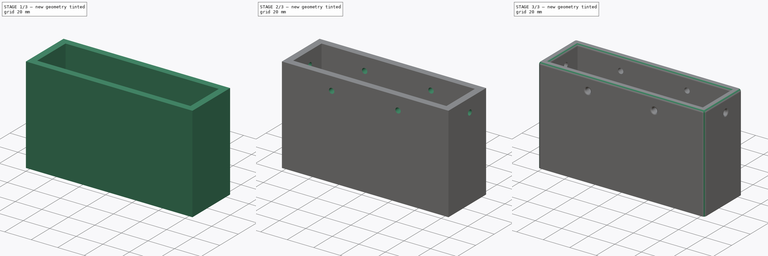
[diagram: build sequence overview — one tinted view per stage of 3, left to right]
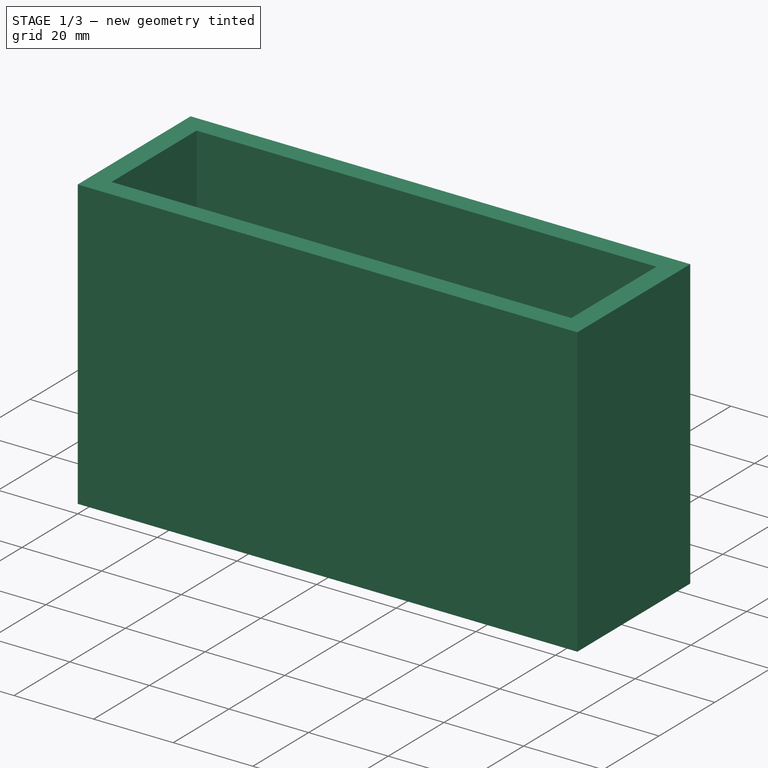
[diagram: stage 1 of 3 — iso view after this stage's code; geometry added in this stage tinted green]
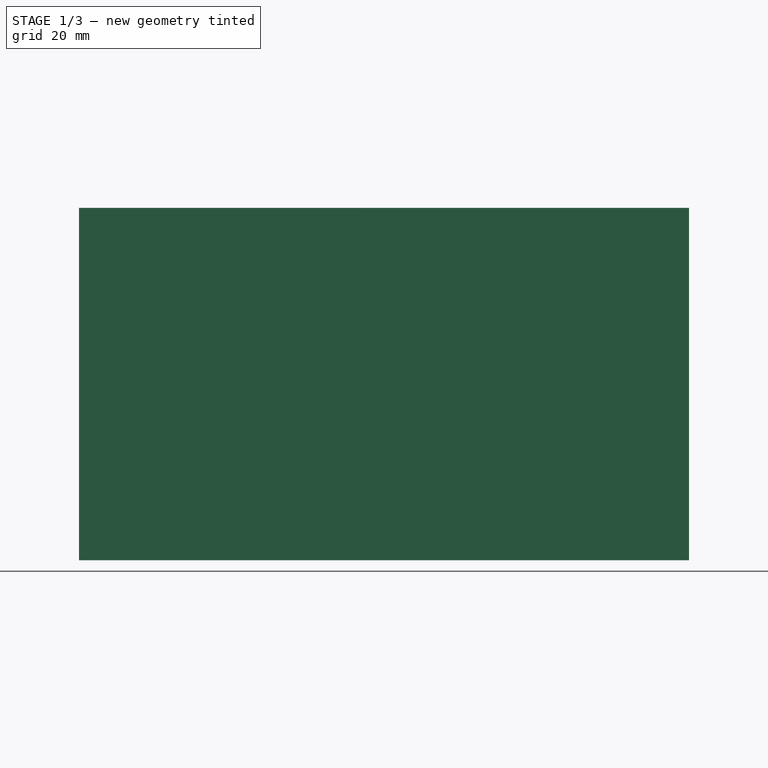
[diagram: stage 1 of 3 — front view after this stage's code; geometry added in this stage tinted green]
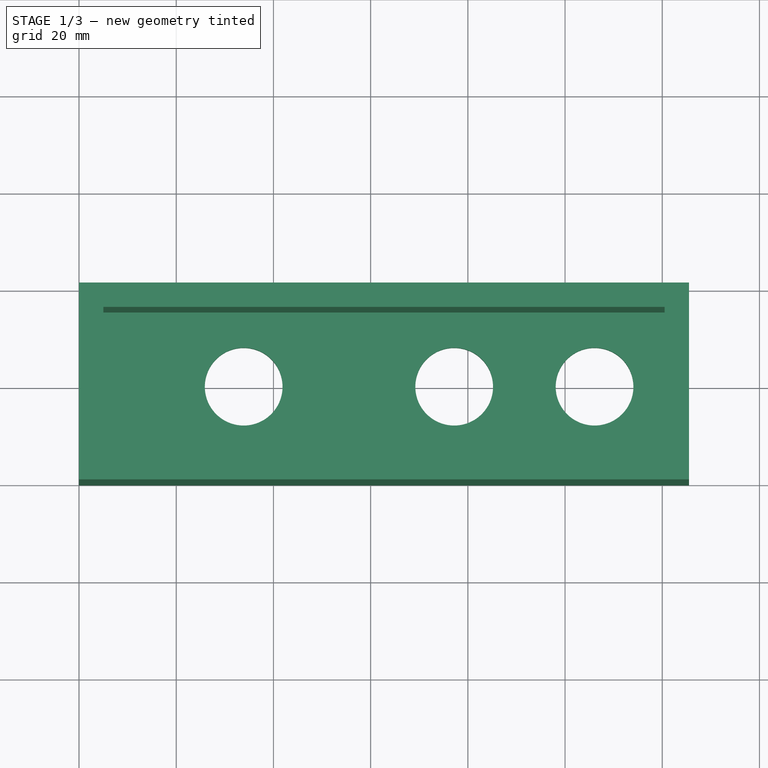
[diagram: stage 1 of 3 — top view after this stage's code; geometry added in this stage tinted green]
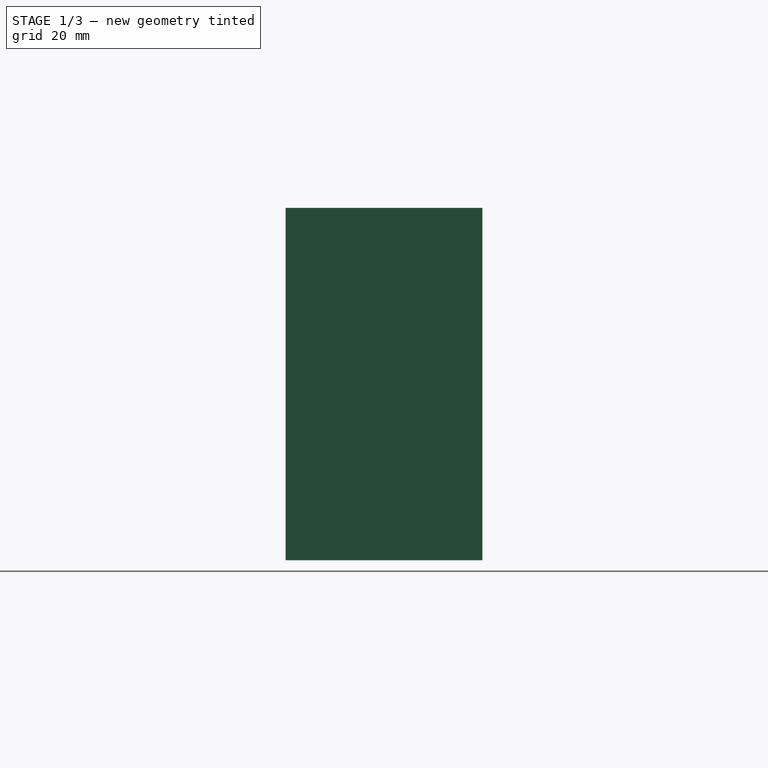
[diagram: stage 1 of 3 — right view after this stage's code; geometry added in this stage tinted green]
FCSTD DOCUMENT  (FreeCAD 0.20R)
Label: psu_endcap
License: All rights reserved
LicenseURL: http://en.wikipedia.org/wiki/All_rights_reserved
objects: Sketcher::SketchObject×5, PartDesign::Pocket×4, PartDesign::ShapeBinder×3, PartDesign::Plane×3, PartDesign::Fillet×3, Spreadsheet::Sheet×1, PartDesign::Pad×1, PartDesign::Body×1
note: 28 computed .brp shape members not serialized (recipe doc carries the construction recipe); baked Part::Feature solids carry a one-line shape summary decoded from their .brp

FEATURE [Sketcher::SketchObject] Sketch
  FullyConstrained = false
  MapMode = 5
  Support = -> [XY_Plane]
  expr: Constraints[19] = Spreadsheet.wall_thickness
  expr: Constraints[20] = Spreadsheet.wall_thickness
  expr: Constraints[24] = 30mm + Spreadsheet.tolerance
  expr: Constraints[25] = 115mm + Spreadsheet.tolerance
  sketch-geometry (16):
    g0: LineSegment StartX=0 StartY=0 StartZ=0 EndX=125.5 EndY=0 EndZ=0
    g1: LineSegment StartX=125.5 StartY=0 StartZ=0 EndX=125.5 EndY=40.5 EndZ=0
    g2: LineSegment StartX=125.5 StartY=40.5 StartZ=0 EndX=0 EndY=40.5 EndZ=0
    g3: LineSegment StartX=0 StartY=40.5 StartZ=0 EndX=0 EndY=0 EndZ=0
    g4: LineSegment StartX=5 StartY=5 StartZ=0 EndX=5 EndY=35.5 EndZ=0
    g5: LineSegment StartX=5 StartY=35.5 StartZ=0 EndX=120.5 EndY=35.5 EndZ=0
    g6: LineSegment StartX=120.5 StartY=35.5 StartZ=0 EndX=120.5 EndY=5 EndZ=0
    g7: LineSegment StartX=120.5 StartY=5 StartZ=0 EndX=5 EndY=5 EndZ=0
    g8: GeomPoint X=62.75 Y=20.25 Z=0
    g9: Circle CenterX=33.88 CenterY=20.25 CenterZ=0 NormalX=0 NormalY=0 NormalZ=1 AngleXU=0 Radius=8
    g10: LineSegment StartX=-1.74839 StartY=20.25 StartZ=0 EndX=125.735 EndY=20.25 EndZ=0
    g11: LineSegment StartX=62.75 StartY=38.1674 StartZ=0 EndX=62.75 EndY=-2.43925 EndZ=0
    g12: Circle CenterX=77.19 CenterY=20.25 CenterZ=0 NormalX=0 NormalY=0 NormalZ=1 AngleXU=0 Radius=8
    g13: Circle CenterX=106.07 CenterY=20.25 CenterZ=0 NormalX=0 NormalY=0 NormalZ=1 AngleXU=0 Radius=8
    g14: Circle CenterX=77.19 CenterY=20.25 CenterZ=0 NormalX=0 NormalY=0 NormalZ=1 AngleXU=0 Radius=11
    g15: Circle CenterX=106.07 CenterY=20.25 CenterZ=0 NormalX=0 NormalY=0 NormalZ=1 AngleXU=0 Radius=11
  constraints (38):
    c: Coincident(g0,g1)
    c: Coincident(g1,g2)
    c: Coincident(g2,g3)
    c: Coincident(g3,g0)
    c: Horizontal(g2)
    c: Vertical(g1)
    c: Coincident(g0,g-1)
    c: Coincident(g4,g5)
    c: Coincident(g5,g6)
    c: Coincident(g6,g7)
    c: Coincident(g7,g4)
    c: Horizontal(g5)
    c: Horizontal(g7)
    c: Vertical(g6)
    c: Symmetric(g5,g4,g8)
    c: Diameter(g9) = 16
    c: Horizontal(g10)
    c: Symmetric(g2,g0,g10)
    c: Symmetric(g4,g4,g10)
    c: DistanceY(g0,g4) = 5
    c: DistanceX(g0,g4) = 5
    c: Vertical(g11)
    c: PointOnObject(g8,g11)
    c: Symmetric(g0,g0,g11)
    c: DistanceY(g4,g4) = 30.5
    c: DistanceX(g7,g7) = 115.5
    c: PointOnObject(g9,g10)
    c: PointOnObject(g12,g10)
    c: PointOnObject(g13,g10)
    c: Equal(g12,g9)
    c: Equal(g9,g13)
    c: DistanceX(g8,g12) = 14.44
    c: Coincident(g14,g12)
    c: Coincident(g15,g13)
    c: Equal(g14,g15)
    c: Diameter(g14) = 22
    c: DistanceX(g8,g13) = 43.32
    c: DistanceX(g4,g9) = 28.88
FEATURE [Spreadsheet::Sheet] Spreadsheet
  cells = A1=Wall thickness; B1(wall_thickness)==5mm; A2=Tolerance; B2(tolerance)==0.5mm; A3=Backoff; B3(wall_backoff)==0.5mm; A5=Hole Depth; B5(hole_depth)==32.5mm; A6=Additional Depth; B6(add_depth)==35mm; A7=Total Depth; B7(total_depth)==hole_depth + add_depth + wall_thickness
FEATURE [PartDesign::Pad] Pad
  Direction = (0,0,1)
  Length = 72.5
  Length2 = 10
  Profile = -> Sketch
  ReferenceAxis = -> Sketch [N_Axis]
  Type = 0
  expr: Length = Spreadsheet.total_depth
FEATURE [PartDesign::ShapeBinder] ShapeBinder
  Placement = pos=(0,0,72.5) rot=(0,0,1;0rad)
  Support = -> [Pad]
  TraceSupport = false
FEATURE [PartDesign::Plane] DatumPlane
  Length = 170.357
  MapMode = 5
  Placement = pos=(0,0,72.5) rot=(0,0,1;0rad)
  ResizeMode = 0
  Support = -> [ShapeBinder]
  Width = 85.3572
FEATURE [Sketcher::SketchObject] Sketch001
  FullyConstrained = false
  MapMode = 5
  Placement = pos=(0,0,72.5) rot=(0,0,1;0rad)
  Support = -> [DatumPlane]
  expr: Constraints[19] = Spreadsheet.wall_thickness
  expr: Constraints[20] = Spreadsheet.wall_thickness
  expr: Constraints[24] = 30mm + Spreadsheet.tolerance
  expr: Constraints[25] = 115mm + Spreadsheet.tolerance
  sketch-geometry (16):
    g0: LineSegment StartX=0 StartY=0 StartZ=0 EndX=125.5 EndY=0 EndZ=0
    g1: LineSegment StartX=125.5 StartY=0 StartZ=0 EndX=125.5 EndY=40.5 EndZ=0
    g2: LineSegment StartX=125.5 StartY=40.5 StartZ=0 EndX=0 EndY=40.5 EndZ=0
    g3: LineSegment StartX=0 StartY=40.5 StartZ=0 EndX=0 EndY=0 EndZ=0
    g4: LineSegment StartX=5 StartY=5 StartZ=0 EndX=5 EndY=35.5 EndZ=0
    g5: LineSegment StartX=5 StartY=35.5 StartZ=0 EndX=120.5 EndY=35.5 EndZ=0
    g6: LineSegment StartX=120.5 StartY=35.5 StartZ=0 EndX=120.5 EndY=5 EndZ=0
    g7: LineSegment StartX=120.5 StartY=5 StartZ=0 EndX=5 EndY=5 EndZ=0
    g8: GeomPoint X=62.75 Y=20.25 Z=0
    g9: Circle CenterX=33.88 CenterY=20.25 CenterZ=0 NormalX=0 NormalY=0 NormalZ=1 AngleXU=0 Radius=8
    g10: LineSegment StartX=-1.74839 StartY=20.25 StartZ=0 EndX=125.735 EndY=20.25 EndZ=0
    g11: LineSegment StartX=62.75 StartY=38.1674 StartZ=0 EndX=62.75 EndY=-2.43925 EndZ=0
    g12: Circle CenterX=77.19 CenterY=20.25 CenterZ=0 NormalX=0 NormalY=0 NormalZ=1 AngleXU=0 Radius=8
    g13: Circle CenterX=106.07 CenterY=20.25 CenterZ=0 NormalX=0 NormalY=0 NormalZ=1 AngleXU=0 Radius=8
    g14: Circle CenterX=77.19 CenterY=20.25 CenterZ=0 NormalX=0 NormalY=0 NormalZ=1 AngleXU=0 Radius=11
    g15: Circle CenterX=106.07 CenterY=20.25 CenterZ=0 NormalX=0 NormalY=0 NormalZ=1 AngleXU=0 Radius=11
  constraints (38):
    c: Coincident(g0,g1)
    c: Coincident(g1,g2)
    c: Coincident(g2,g3)
    c: Coincident(g3,g0)
    c: Horizontal(g2)
    c: Vertical(g1)
    c: Coincident(g0,g-1)
    c: Coincident(g4,g5)
    c: Coincident(g5,g6)
    c: Coincident(g6,g7)
    c: Coincident(g7,g4)
    c: Horizontal(g5)
    c: Horizontal(g7)
    c: Vertical(g6)
    c: Symmetric(g5,g4,g8)
    c: Diameter(g9) = 16
    c: Horizontal(g10)
    c: Symmetric(g2,g0,g10)
    c: Symmetric(g4,g4,g10)
    c: DistanceY(g0,g4) = 5
    c: DistanceX(g0,g4) = 5
    c: Vertical(g11)
    c: PointOnObject(g8,g11)
    c: Symmetric(g0,g0,g11)
    c: DistanceY(g4,g4) = 30.5
    c: DistanceX(g7,g7) = 115.5
    c: PointOnObject(g9,g10)
    c: PointOnObject(g12,g10)
    c: PointOnObject(g13,g10)
    c: Equal(g12,g9)
    c: Equal(g9,g13)
    c: DistanceX(g8,g12) = 14.44
    c: Coincident(g14,g12)
    c: Coincident(g15,g13)
    c: Equal(g14,g15)
    c: Diameter(g14) = 22
    c: DistanceX(g8,g13) = 43.32
    c: DistanceX(g4,g9) = 28.88
FEATURE [PartDesign::Pocket] Pocket
  BaseFeature = -> Pad
  Direction = (0,0,-1)
  Length = 67.5
  Length2 = 5
  Profile = -> Sketch001
  ReferenceAxis = -> Sketch001 [N_Axis]
  Type = 0
  expr: Length = Spreadsheet.total_depth - Spreadsheet.wall_thickness
FEATURE [Sketcher::SketchObject] Sketch002
  FullyConstrained = false
  MapMode = 5
  Placement = pos=(0,0,72.5) rot=(0,0,1;0rad)
  Support = -> [DatumPlane]
  expr: Constraints[19] = Spreadsheet.wall_thickness
  expr: Constraints[20] = Spreadsheet.wall_thickness
  expr: Constraints[24] = 30mm + Spreadsheet.tolerance
  expr: Constraints[25] = 115mm + Spreadsheet.tolerance
  sketch-geometry (16):
    g0: LineSegment StartX=0 StartY=0 StartZ=0 EndX=125.5 EndY=0 EndZ=0
    g1: LineSegment StartX=125.5 StartY=0 StartZ=0 EndX=125.5 EndY=40.5 EndZ=0
    g2: LineSegment StartX=125.5 StartY=40.5 StartZ=0 EndX=0 EndY=40.5 EndZ=0
    g3: LineSegment StartX=0 StartY=40.5 StartZ=0 EndX=0 EndY=0 EndZ=0
    g4: LineSegment StartX=5 StartY=5 StartZ=0 EndX=5 EndY=35.5 EndZ=0
    g5: LineSegment StartX=5 StartY=35.5 StartZ=0 EndX=120.5 EndY=35.5 EndZ=0
    g6: LineSegment StartX=120.5 StartY=35.5 StartZ=0 EndX=120.5 EndY=5 EndZ=0
    g7: LineSegment StartX=120.5 StartY=5 StartZ=0 EndX=5 EndY=5 EndZ=0
    g8: GeomPoint X=62.75 Y=20.25 Z=0
    g9: Circle CenterX=33.88 CenterY=20.25 CenterZ=0 NormalX=0 NormalY=0 NormalZ=1 AngleXU=0 Radius=8
    g10: LineSegment StartX=-1.74839 StartY=20.25 StartZ=0 EndX=125.735 EndY=20.25 EndZ=0
    g11: LineSegment StartX=62.75 StartY=38.1674 StartZ=0 EndX=62.75 EndY=-2.43925 EndZ=0
    g12: Circle CenterX=77.19 CenterY=20.25 CenterZ=0 NormalX=0 NormalY=0 NormalZ=1 AngleXU=0 Radius=8
    g13: Circle CenterX=106.07 CenterY=20.25 CenterZ=0 NormalX=0 NormalY=0 NormalZ=1 AngleXU=0 Radius=8
    g14: Circle CenterX=77.19 CenterY=20.25 CenterZ=0 NormalX=0 NormalY=0 NormalZ=1 AngleXU=0 Radius=11
    g15: Circle CenterX=106.07 CenterY=20.25 CenterZ=0 NormalX=0 NormalY=0 NormalZ=1 AngleXU=0 Radius=11
  constraints (38):
    c: Coincident(g0,g1)
    c: Coincident(g1,g2)
    c: Coincident(g2,g3)
    c: Coincident(g3,g0)
    c: Horizontal(g2)
    c: Vertical(g1)
    c: Coincident(g0,g-1)
    c: Coincident(g4,g5)
    c: Coincident(g5,g6)
    c: Coincident(g6,g7)
    c: Coincident(g7,g4)
    c: Horizontal(g5)
    c: Horizontal(g7)
    c: Vertical(g6)
    c: Symmetric(g5,g4,g8)
    c: Diameter(g9) = 16
    c: Horizontal(g10)
    c: Symmetric(g2,g0,g10)
    c: Symmetric(g4,g4,g10)
    c: DistanceY(g0,g4) = 5
    c: DistanceX(g0,g4) = 5
    c: Vertical(g11)
    c: PointOnObject(g8,g11)
    c: Symmetric(g0,g0,g11)
    c: DistanceY(g4,g4) = 30.5
    c: DistanceX(g7,g7) = 115.5
    c: PointOnObject(g9,g10)
    c: PointOnObject(g12,g10)
    c: PointOnObject(g13,g10)
    c: Equal(g12,g9)
    c: Equal(g9,g13)
    c: DistanceX(g8,g12) = 14.44
    c: Coincident(g14,g12)
    c: Coincident(g15,g13)
    c: Equal(g14,g15)
    c: Diameter(g14) = 22
    c: DistanceX(g8,g13) = 43.32
    c: DistanceX(g4,g9) = 28.88
FEATURE [PartDesign::Pocket] Pocket001
  BaseFeature = -> Pocket
  Direction = (0,0,-1)
  Length = 72.5
  Length2 = 5
  Profile = -> Sketch002
  ReferenceAxis = -> Sketch002 [N_Axis]
  Type = 0
  expr: Length = Spreadsheet.total_depth
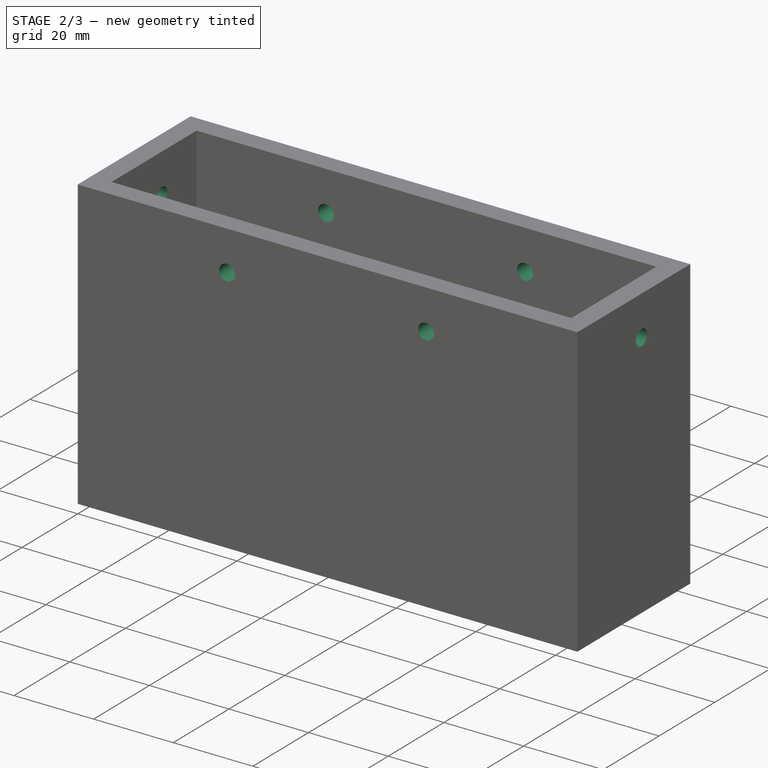
[diagram: stage 2 of 3 — iso view after this stage's code; geometry added in this stage tinted green]
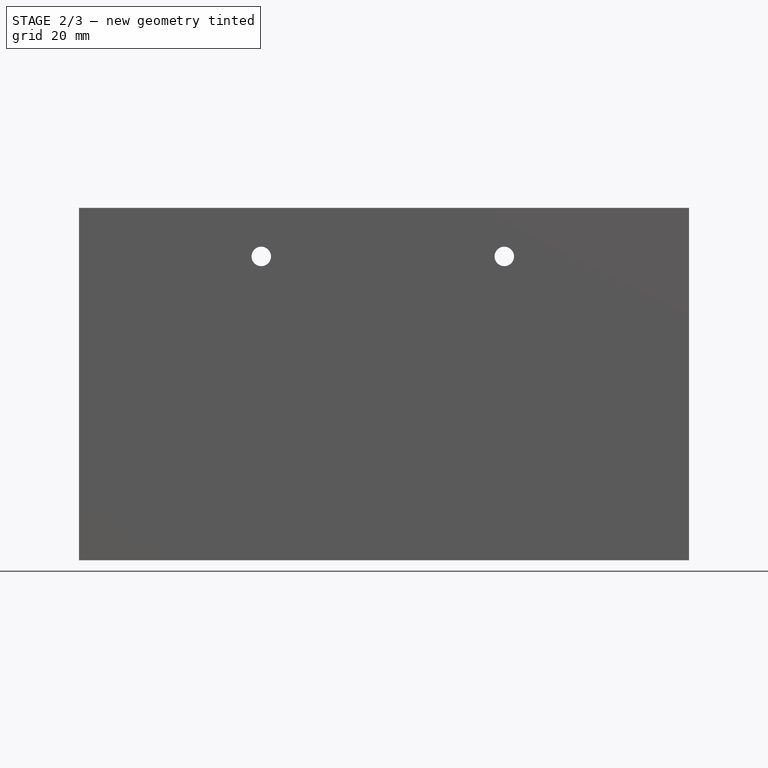
[diagram: stage 2 of 3 — front view after this stage's code; geometry added in this stage tinted green]
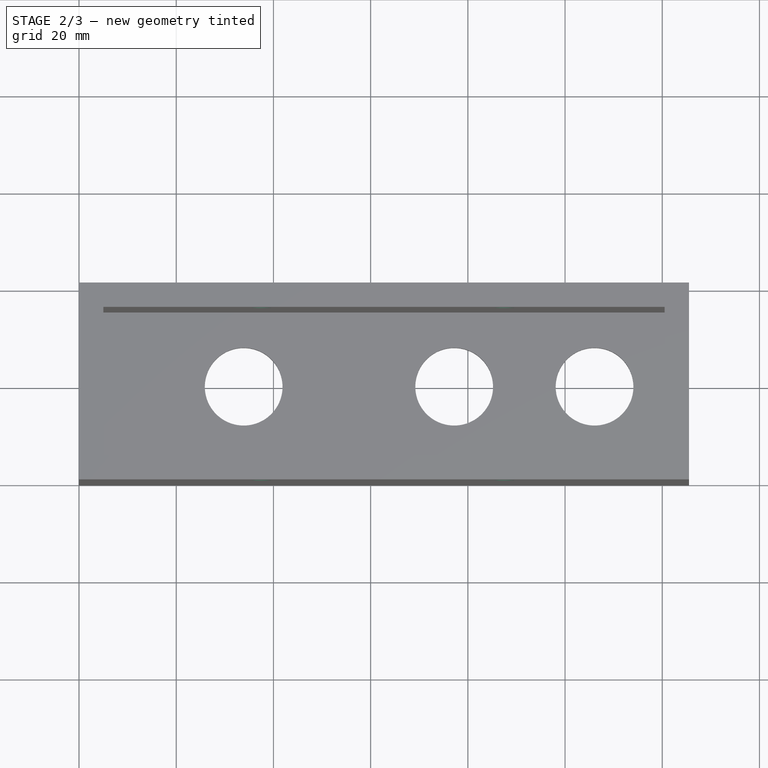
[diagram: stage 2 of 3 — top view after this stage's code; geometry added in this stage tinted green]
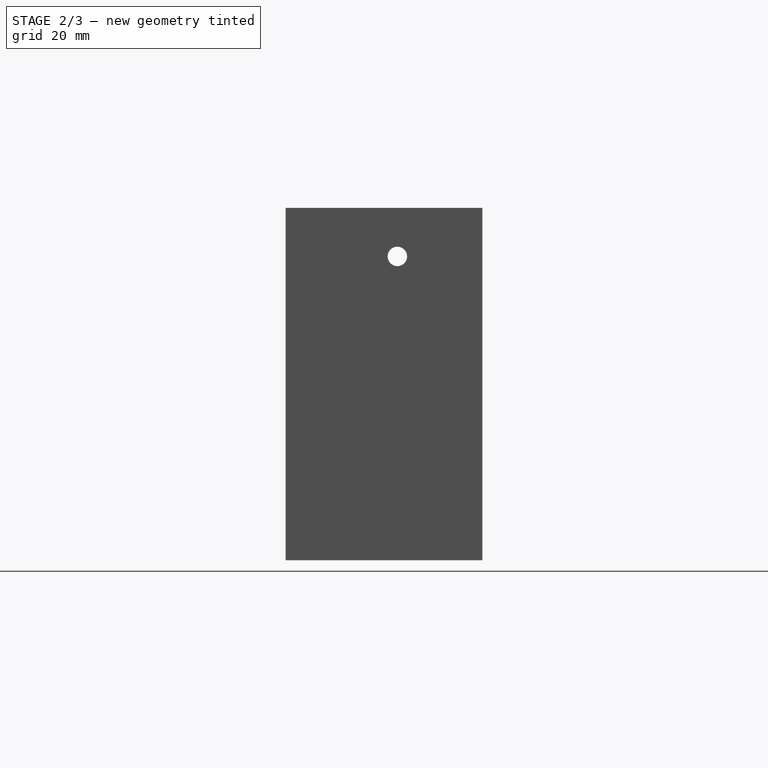
[diagram: stage 2 of 3 — right view after this stage's code; geometry added in this stage tinted green]
FEATURE [PartDesign::ShapeBinder] ShapeBinder001
  Support = -> [Pocket001]
  TraceSupport = false
FEATURE [PartDesign::Plane] DatumPlane001
  Length = 174.727
  MapMode = 5
  Placement = pos=(0,0,0) rot=(1,0,0;1.5708rad)
  ResizeMode = 0
  Support = -> [ShapeBinder001]
  Width = 121.727
FEATURE [Sketcher::SketchObject] Sketch003
  FullyConstrained = false
  MapMode = 5
  Placement = pos=(0,0,0) rot=(1,0,0;1.5708rad)
  Support = -> [DatumPlane001]
  expr: Constraints[1] = Spreadsheet.total_depth - 10mm
  expr: Constraints[5] = Spreadsheet.wall_thickness + 32.5mm
  sketch-geometry (3):
    g0: LineSegment StartX=-17.8182 StartY=62.5 StartZ=0 EndX=146.376 EndY=62.5 EndZ=0
    g1: Circle CenterX=37.5 CenterY=62.5 CenterZ=0 NormalX=0 NormalY=0 NormalZ=1 AngleXU=0 Radius=2
    g2: Circle CenterX=87.5 CenterY=62.5 CenterZ=0 NormalX=0 NormalY=0 NormalZ=1 AngleXU=0 Radius=2
  constraints (8):
    c: Horizontal(g0)
    c: DistanceY(g-1,g0) = 62.5
    c: PointOnObject(g1,g0)
    c: PointOnObject(g2,g0)
    c: Equal(g1,g2)
    c: DistanceX(g-1,g1) = 37.5
    c: DistanceX(g1,g2) = 50
    c: Diameter(g1) = 4
FEATURE [PartDesign::Pocket] Pocket002
  BaseFeature = -> Pocket001
  Direction = (0,1,-2e-16)
  Length = 5
  Length2 = 5
  Profile = -> Sketch003
  ReferenceAxis = -> Sketch003 [N_Axis]
  Type = 1
FEATURE [PartDesign::ShapeBinder] ShapeBinder002
  Support = -> [Pocket002]
  TraceSupport = false
FEATURE [PartDesign::Plane] DatumPlane002
  Length = 81.4828
  MapMode = 5
  Placement = pos=(0,0,0) rot=(0.57735,-0.57735,-0.57735;2.0944rad)
  ResizeMode = 0
  Support = -> [ShapeBinder002]
  Width = 113.483
FEATURE [Sketcher::SketchObject] Sketch004
  ExternalGeometry = -> [Pocket002]
  FullyConstrained = false
  MapMode = 5
  Placement = pos=(0,0,0) rot=(0.57735,-0.57735,-0.57735;2.0944rad)
  Support = -> [DatumPlane002]
  expr: Constraints[1] = Spreadsheet.total_depth - 10mm
  expr: Constraints[3] = Spreadsheet.wall_thickness + 12.5mm
  sketch-geometry (2):
    g0: LineSegment StartX=-48.2991 StartY=62.5 StartZ=0 EndX=26.8978 EndY=62.5 EndZ=0
    g1: Circle CenterX=-23 CenterY=62.5 CenterZ=0 NormalX=0 NormalY=0 NormalZ=1 AngleXU=0 Radius=2
  constraints (5):
    c: Horizontal(g0)
    c: DistanceY(g-1,g0) = 62.5
    c: PointOnObject(g1,g0)
    c: DistanceX(g-3,g1) = 17.5
    c: Diameter(g1) = 4
FEATURE [PartDesign::Pocket] Pocket003
  BaseFeature = -> Pocket002
  Direction = (1,0,0)
  Length = 5
  Length2 = 5
  Profile = -> Sketch004
  ReferenceAxis = -> Sketch004 [N_Axis]
  Type = 1
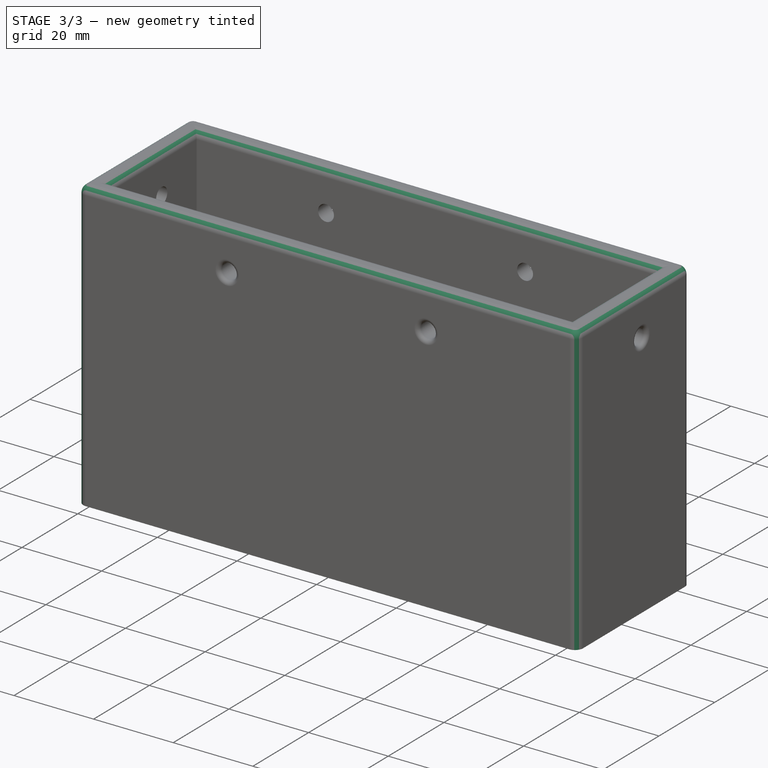
[diagram: stage 3 of 3 — iso view after this stage's code; geometry added in this stage tinted green]
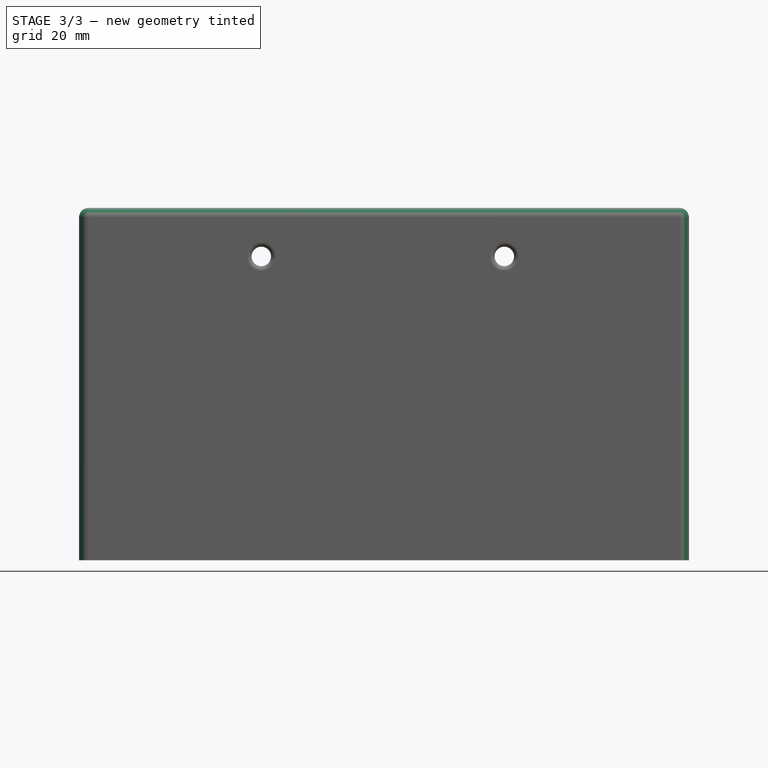
[diagram: stage 3 of 3 — front view after this stage's code; geometry added in this stage tinted green]
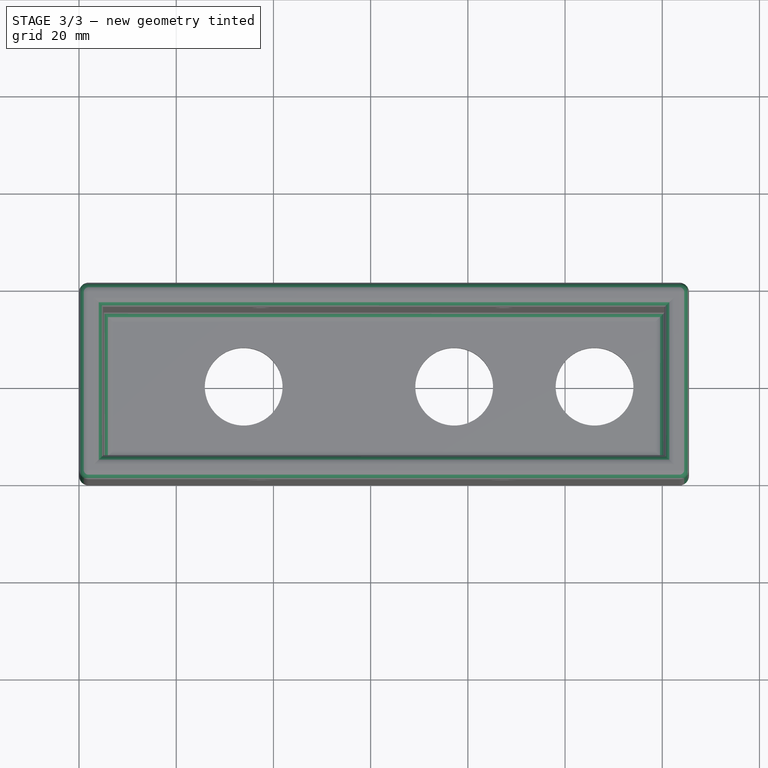
[diagram: stage 3 of 3 — top view after this stage's code; geometry added in this stage tinted green]
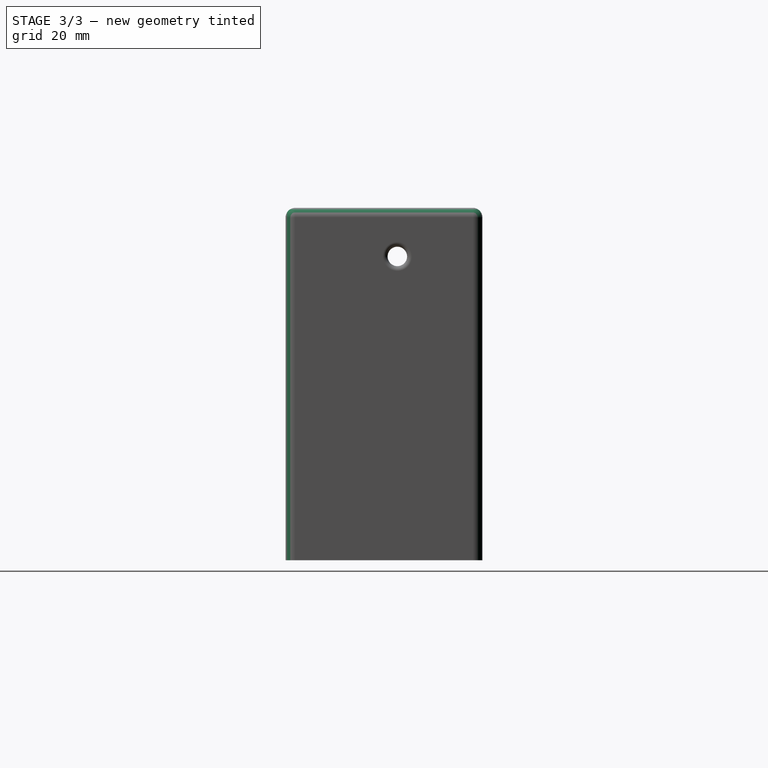
[diagram: stage 3 of 3 — right view after this stage's code; geometry added in this stage tinted green]
FEATURE [PartDesign::Fillet] Fillet
  Base = -> Pocket003 [Face4,Edge1,Edge7,Edge22,Edge4]
  BaseFeature = -> Pocket003
  Radius = 2
  SupportTransform = false
  UseAllEdges = false
FEATURE [PartDesign::Fillet] Fillet001
  Base = -> Fillet [Edge76,Edge77,Edge60,Edge78]
  BaseFeature = -> Fillet
  Radius = 2
  SupportTransform = false
  UseAllEdges = false
FEATURE [PartDesign::Fillet] Fillet002
  Base = -> Fillet001 [Edge23,Edge21,Edge34,Edge57,Edge55,Edge48]
  BaseFeature = -> Fillet001
  Radius = 1
  SupportTransform = false
  UseAllEdges = false
FEATURE [PartDesign::Body] Body
  Group = -> [Sketch,Pad,ShapeBinder,DatumPlane,Sketch001,Pocket,Sketch002,Pocket001,ShapeBinder001,DatumPlane001,Sketch003,Pocket002,ShapeBinder002,DatumPlane002,Sketch004,Pocket003,Fillet,Fillet001,Fillet002]
  Origin = -> Origin
  Tip = -> Fillet002
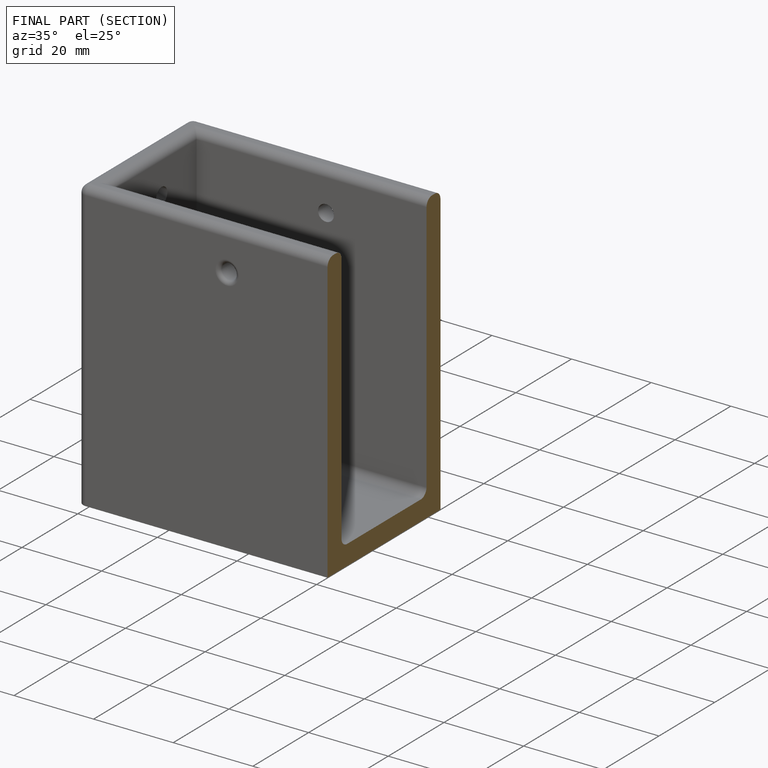
[diagram: finished part — half-section view (interior)]
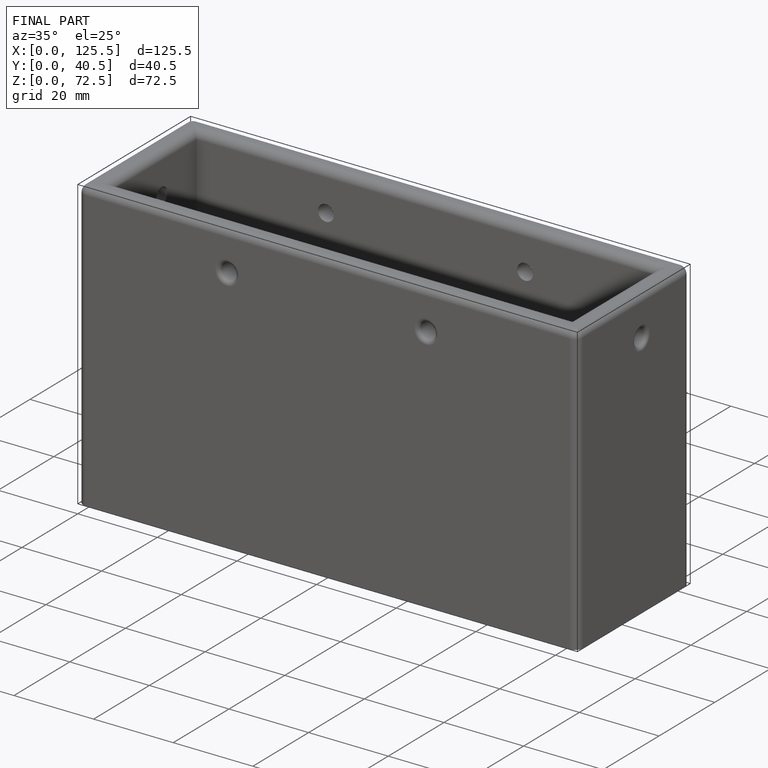
[diagram: finished part — iso view with bounding-box wireframe]
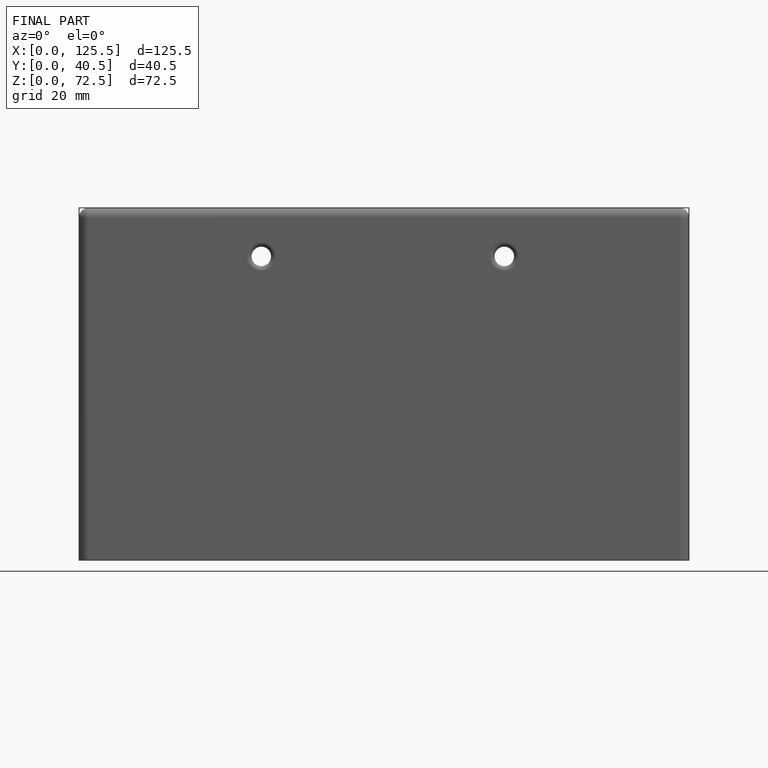
[diagram: finished part — front view with bounding-box wireframe]
